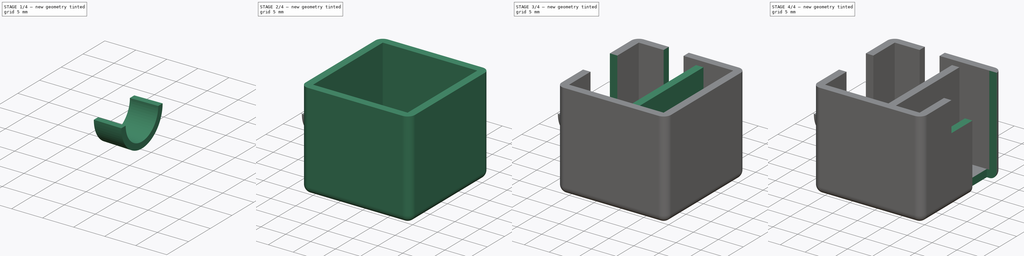
[diagram: build sequence overview — one tinted view per stage of 4, left to right]
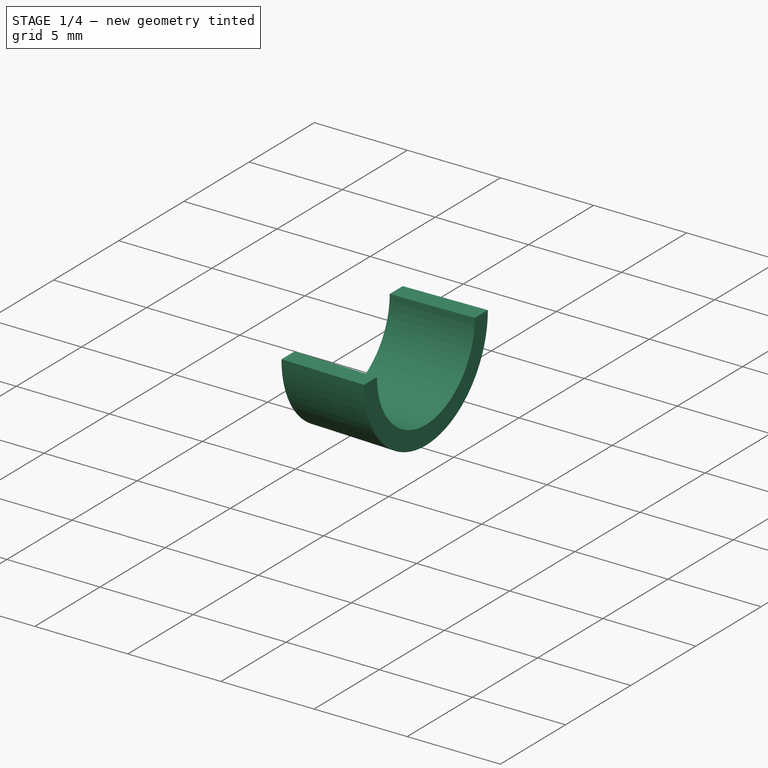
[diagram: stage 1 of 4 — iso view after this stage's code; geometry added in this stage tinted green]
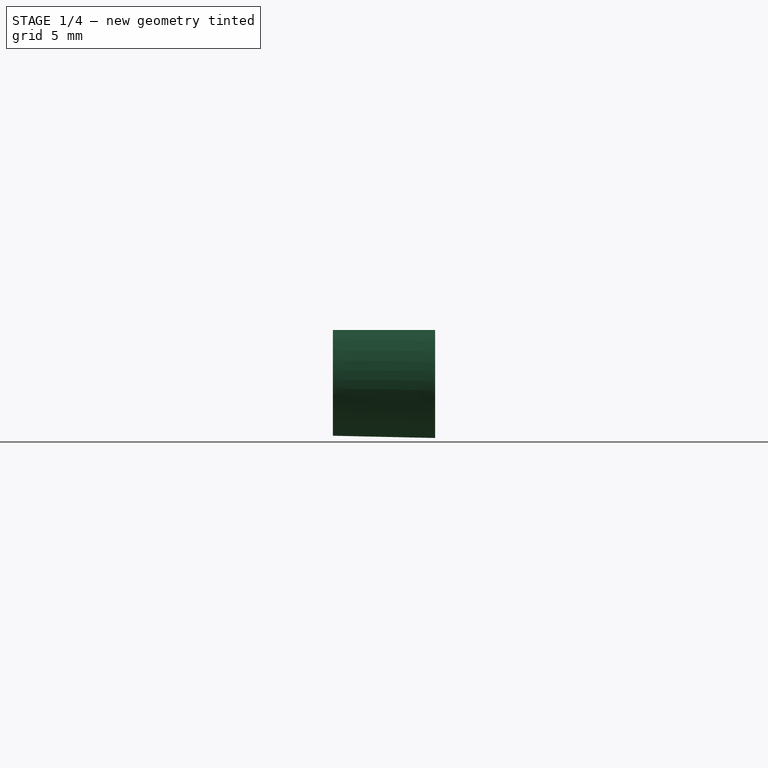
[diagram: stage 1 of 4 — front view after this stage's code; geometry added in this stage tinted green]
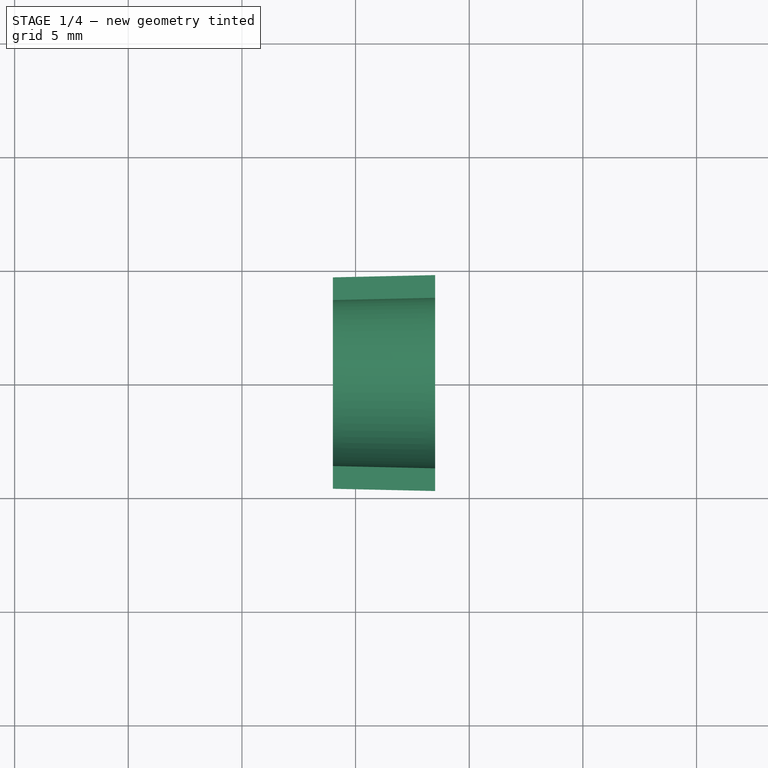
[diagram: stage 1 of 4 — top view after this stage's code; geometry added in this stage tinted green]
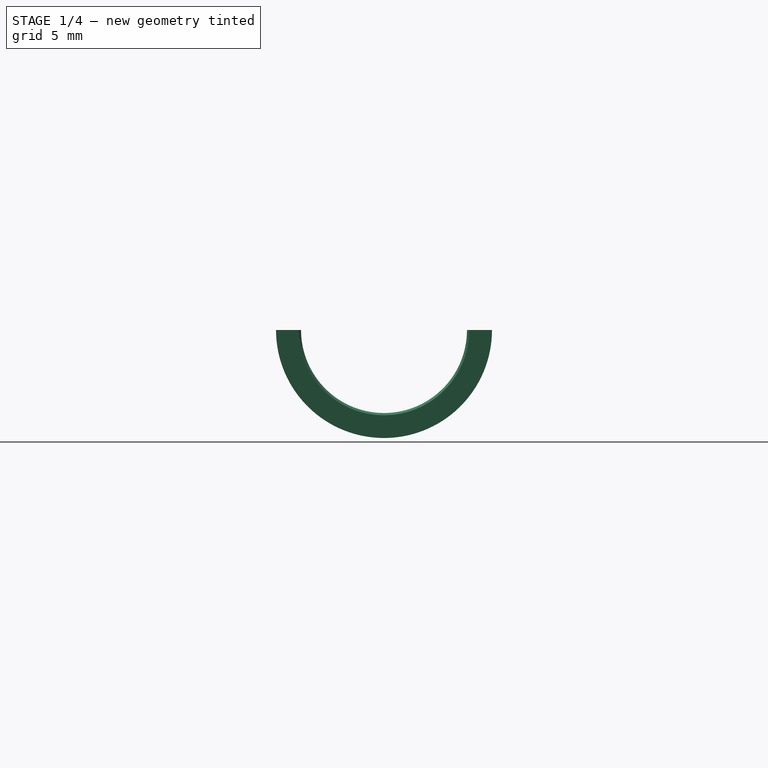
[diagram: stage 1 of 4 — right view after this stage's code; geometry added in this stage tinted green]
FCSTD DOCUMENT  (FreeCAD 0.18RUnknown)
Label: camera_cyclops+vtx
License: All rights reserved
LicenseURL: http://en.wikipedia.org/wiki/All_rights_reserved
objects: TechDraw::DrawViewDimension×6, Sketcher::SketchObject×3, PartDesign::Pocket×3, PartDesign::AdditiveBox×2, PartDesign::Thickness×1, PartDesign::Body×1, Part::Cone×1, Part::Thickness×1, TechDraw::DrawSVGTemplate×1, TechDraw::DrawViewPart×1, TechDraw::DrawPage×1, Part::MultiFuse×1
note: 18 computed .brp shape members not serialized (recipe doc carries the construction recipe); baked Part::Feature solids carry a one-line shape summary decoded from their .brp

FEATURE [PartDesign::Body] Body
  Group = -> [Box,Thickness,Sketch,Pocket,Sketch001,Pocket001,Box001,Sketch002,Pocket002]
  Origin = -> Origin
  Tip = -> Pocket002
FEATURE [Part::Cone] Cone  label="Cono"
  Angle = 180
  AttacherType = Attacher::AttachEngine3D
  Height = 4.5
  Placement = pos=(-1.5,10,9) rot=(-0.57735,-0.57735,0.57735;2.0944rad)
  Radius1 = 3.75
  Radius2 = 3.65
FEATURE [Part::Thickness] Thickness001
  Faces = -> Cone [Face5,Face4,Face2,Face3]
  Intersection = false
  Join = 0
  Mode = 0
  SelfIntersection = false
  Value = 1
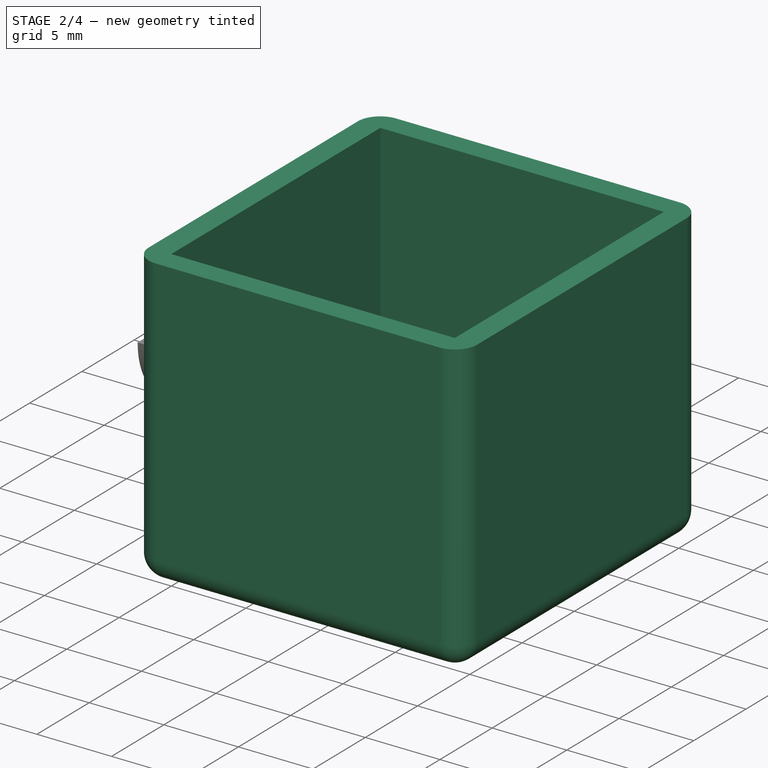
[diagram: stage 2 of 4 — iso view after this stage's code; geometry added in this stage tinted green]
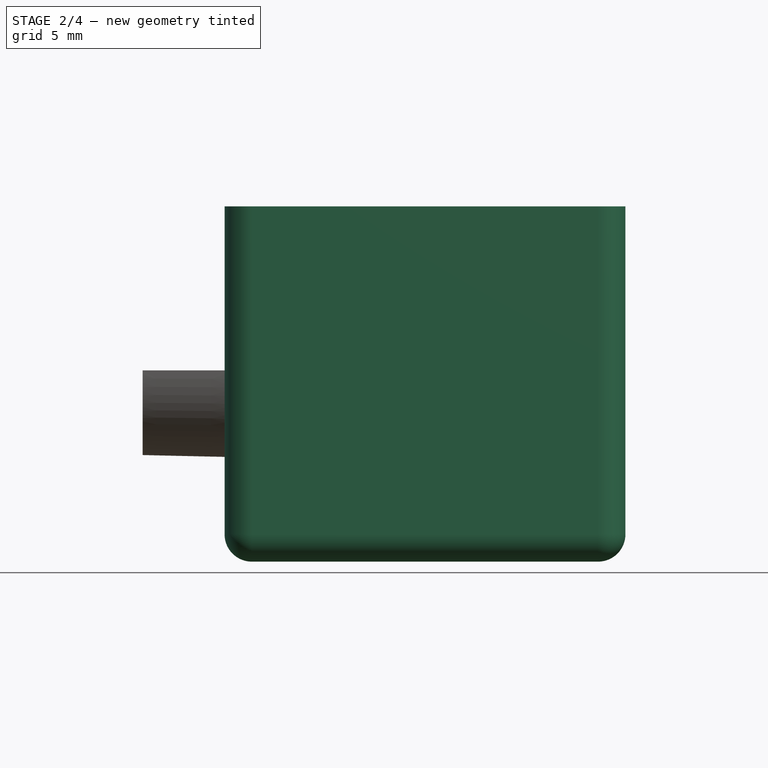
[diagram: stage 2 of 4 — front view after this stage's code; geometry added in this stage tinted green]
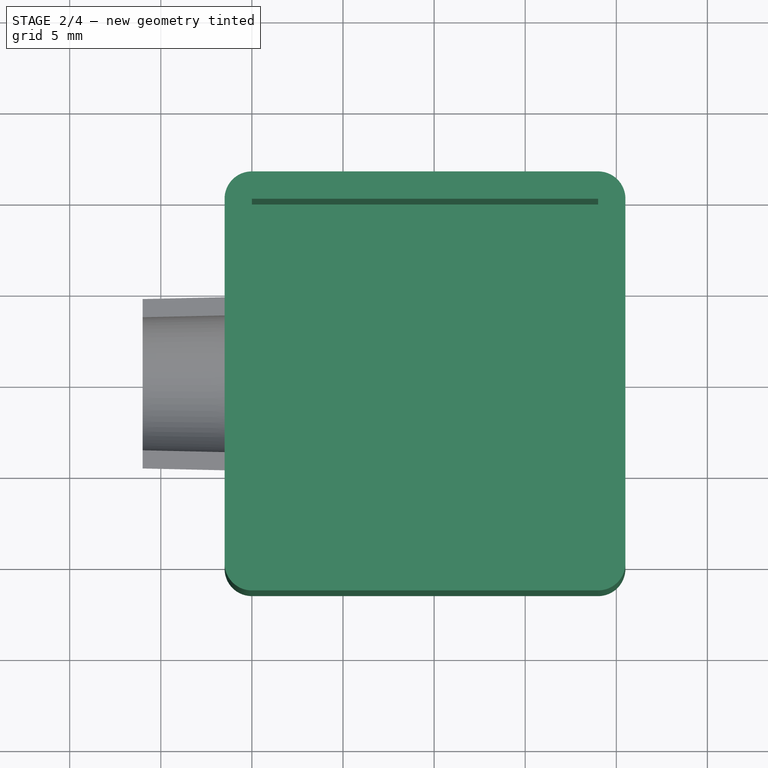
[diagram: stage 2 of 4 — top view after this stage's code; geometry added in this stage tinted green]
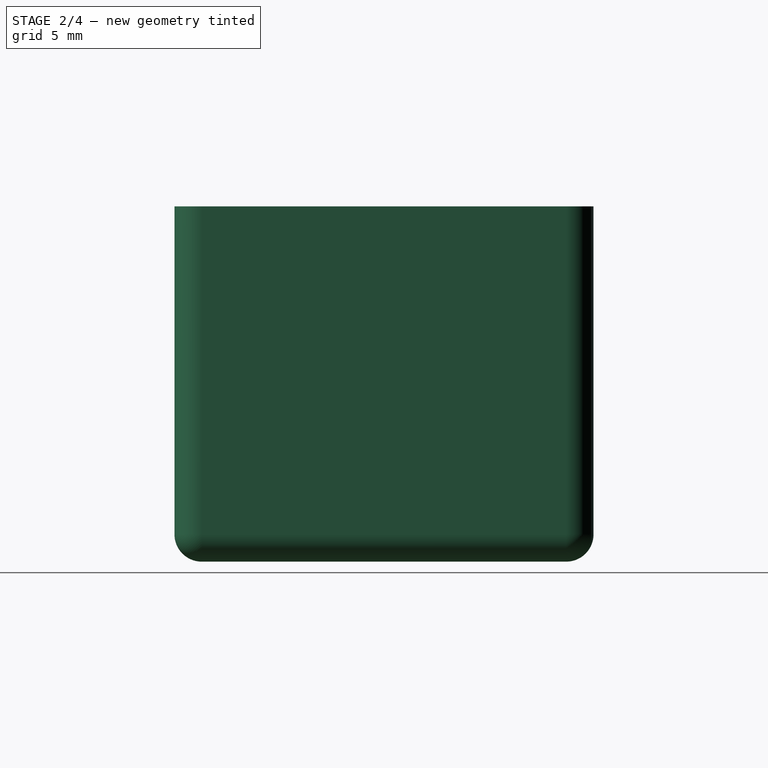
[diagram: stage 2 of 4 — right view after this stage's code; geometry added in this stage tinted green]
FEATURE [PartDesign::AdditiveBox] Box
  AttacherType = Attacher::AttachEngine3D
  Height = 18
  Length = 19
  Width = 20
FEATURE [PartDesign::Thickness] Thickness
  Base = -> Box [Face6]
  BaseFeature = -> Box
  Join = 0
  Mode = 0
  Value = 1.5
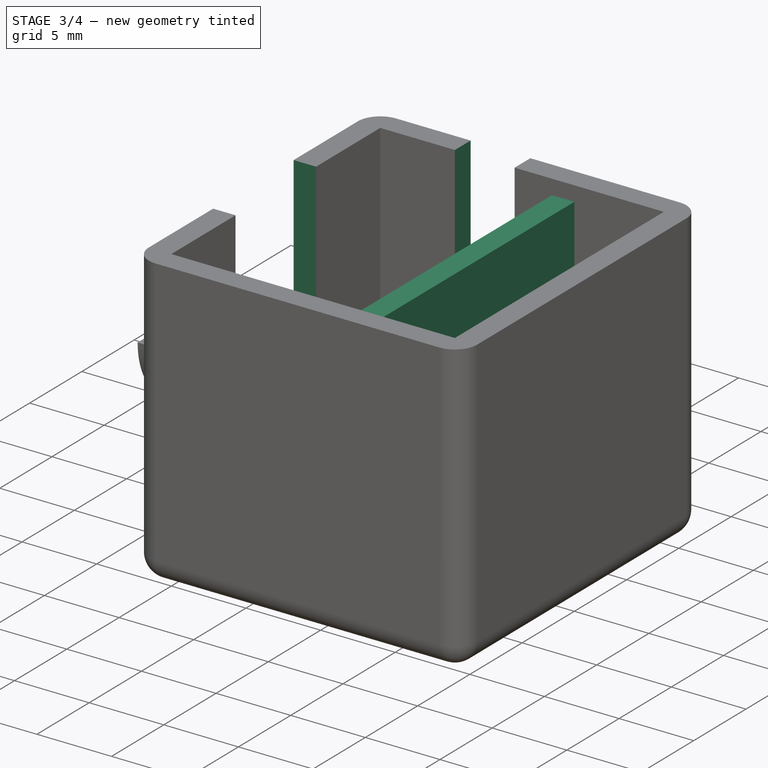
[diagram: stage 3 of 4 — iso view after this stage's code; geometry added in this stage tinted green]
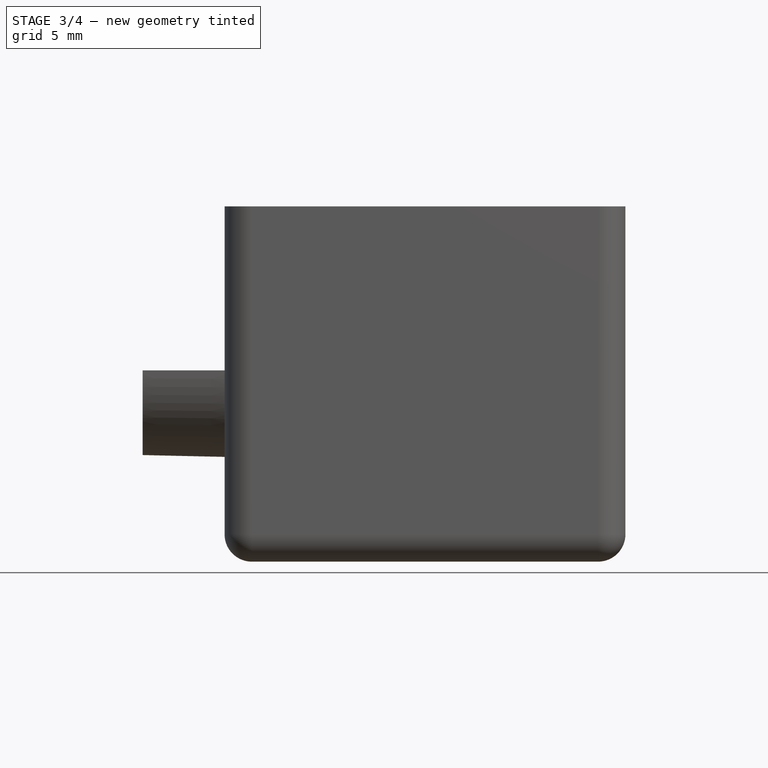
[diagram: stage 3 of 4 — front view after this stage's code; geometry added in this stage tinted green]
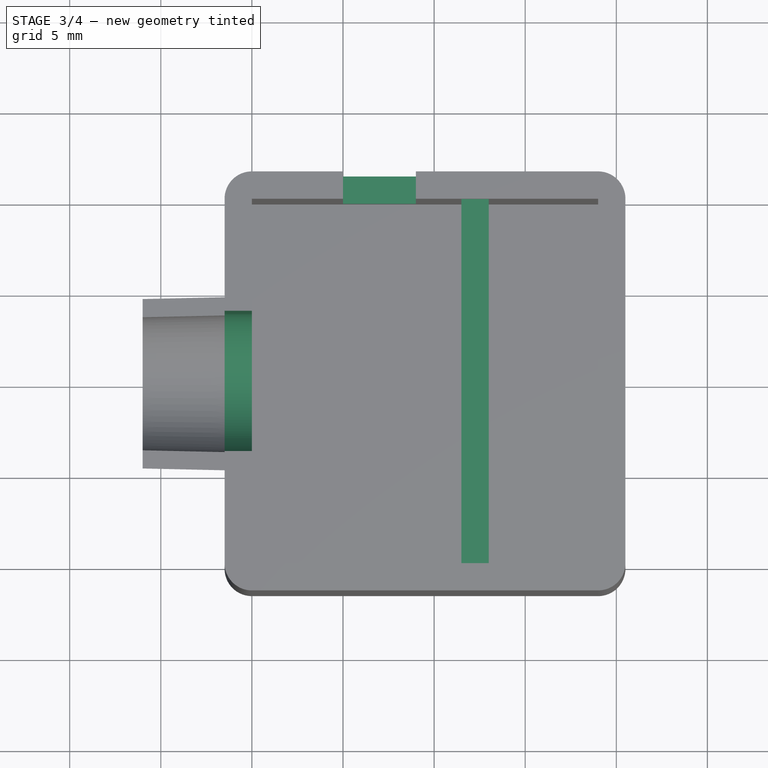
[diagram: stage 3 of 4 — top view after this stage's code; geometry added in this stage tinted green]
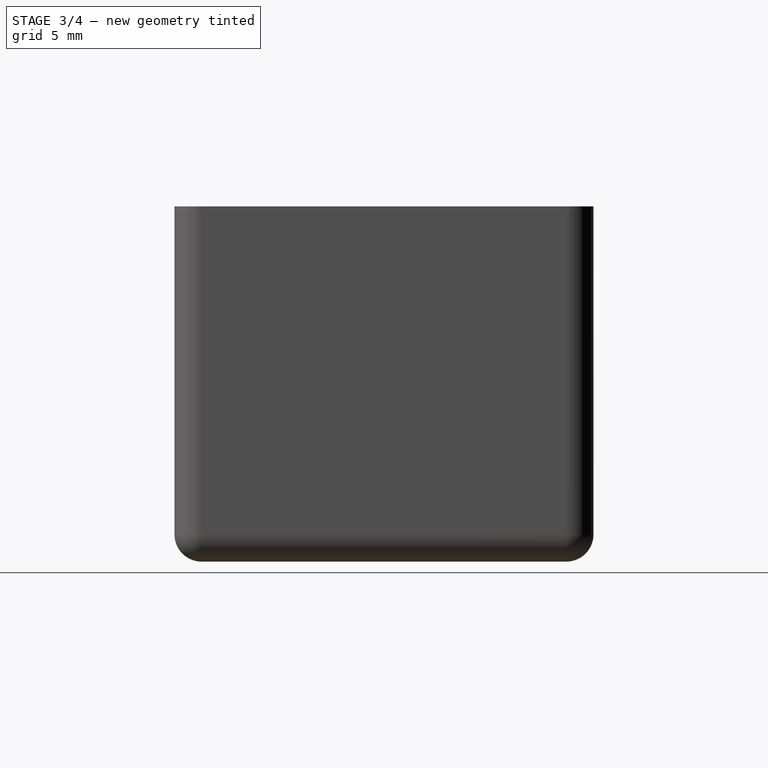
[diagram: stage 3 of 4 — right view after this stage's code; geometry added in this stage tinted green]
FEATURE [Sketcher::SketchObject] Sketch
  MapMode = 5
  Placement = pos=(-1.5,0,0) rot=(0.57735,-0.57735,-0.57735;2.0944rad)
  Support = -> [Thickness]
  sketch-geometry (4):
    g0: ArcOfCircle CenterX=-10 CenterY=19 CenterZ=0 NormalX=0 NormalY=0 NormalZ=1 AngleXU=0 Radius=3.85 StartAngle=-1.33e-14 EndAngle=3.14159
    g1: ArcOfCircle CenterX=-10 CenterY=9 CenterZ=0 NormalX=0 NormalY=0 NormalZ=1 AngleXU=0 Radius=3.85 StartAngle=3.14159 EndAngle=6.28319
    g2: LineSegment StartX=-13.85 StartY=19 StartZ=0 EndX=-13.85 EndY=9 EndZ=0
    g3: LineSegment StartX=-6.15 StartY=19 StartZ=0 EndX=-6.15 EndY=9 EndZ=0
  constraints (10):
    c: Tangent(g0,g3) = 1.5708
    c: Tangent(g0,g2) = -1.5708
    c: Tangent(g2,g1) = -1.5708
    c: Tangent(g3,g1) = 1.5708
    c: Vertical(g2)
    c: Equal(g0,g1)
    c: Diameter(g1) = 7.7
    c: Distance(g1,g-2) = 10
    c: DistanceY(g2,g2) = 10
    c: Distance(g1,g-1) = 9
FEATURE [PartDesign::Pocket] Pocket
  BaseFeature = -> Thickness
  Length = 2
  Length2 = 100
  Profile = -> Sketch
  Type = 0
FEATURE [Sketcher::SketchObject] Sketch001
  MapMode = 5
  Placement = pos=(0,21.5,0) rot=(0,0.707107,0.707107;3.14159rad)
  Support = -> [Pocket]
  sketch-geometry (4):
    g0: LineSegment StartX=-9 StartY=20 StartZ=0 EndX=-5 EndY=20 EndZ=0
    g1: LineSegment StartX=-5 StartY=20 StartZ=0 EndX=-5 EndY=2 EndZ=0
    g2: LineSegment StartX=-5 StartY=2 StartZ=0 EndX=-9 EndY=2 EndZ=0
    g3: LineSegment StartX=-9 StartY=2 StartZ=0 EndX=-9 EndY=20 EndZ=0
  constraints (12):
    c: Coincident(g0,g1)
    c: Coincident(g1,g2)
    c: Coincident(g2,g3)
    c: Coincident(g3,g0)
    c: Horizontal(g0)
    c: Horizontal(g2)
    c: Vertical(g1)
    c: Vertical(g3)
    c: Distance(g1,g-2) = 5
    c: DistanceX(g0,g0) = 4
    c: Distance(g1,g-1) = 2
    c: DistanceY(g1,g1) = 18
FEATURE [PartDesign::Pocket] Pocket001
  BaseFeature = -> Pocket
  Length = 2
  Length2 = 100
  Profile = -> Sketch001
  Type = 0
FEATURE [PartDesign::AdditiveBox] Box001
  AttacherType = Attacher::AttachEngine3D
  AttachmentOffset = pos=(0,0,11.5) rot=(0,0,1;0rad)
  BaseFeature = -> Pocket001
  Height = 1.5
  Length = 20
  MapMode = 5
  Placement = pos=(11.5,-2.6e-15,2.6e-15) rot=(0.57735,0.57735,0.57735;2.0944rad)
  Support = -> [YZ_Plane]
  Width = 17
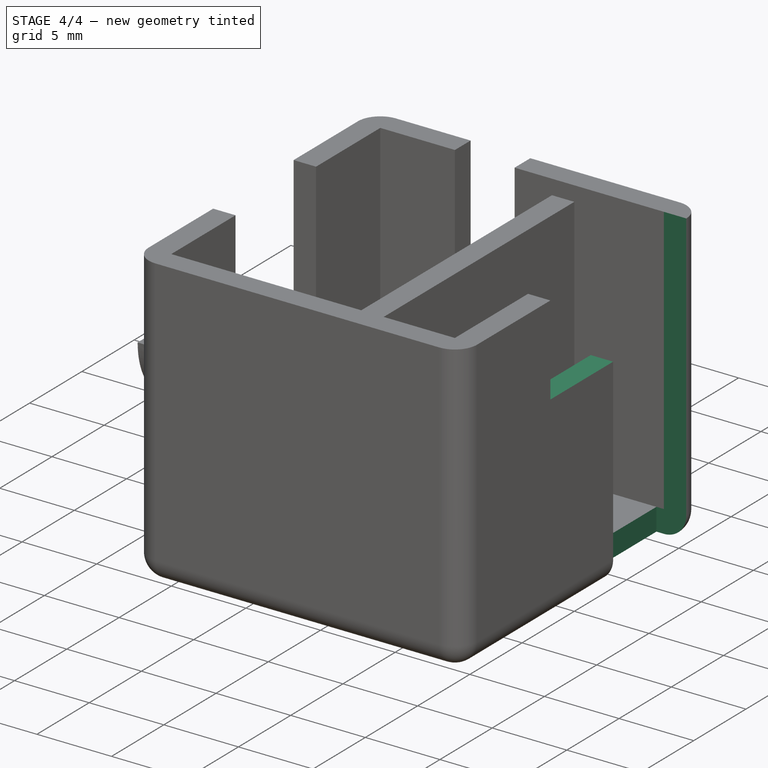
[diagram: stage 4 of 4 — iso view after this stage's code; geometry added in this stage tinted green]
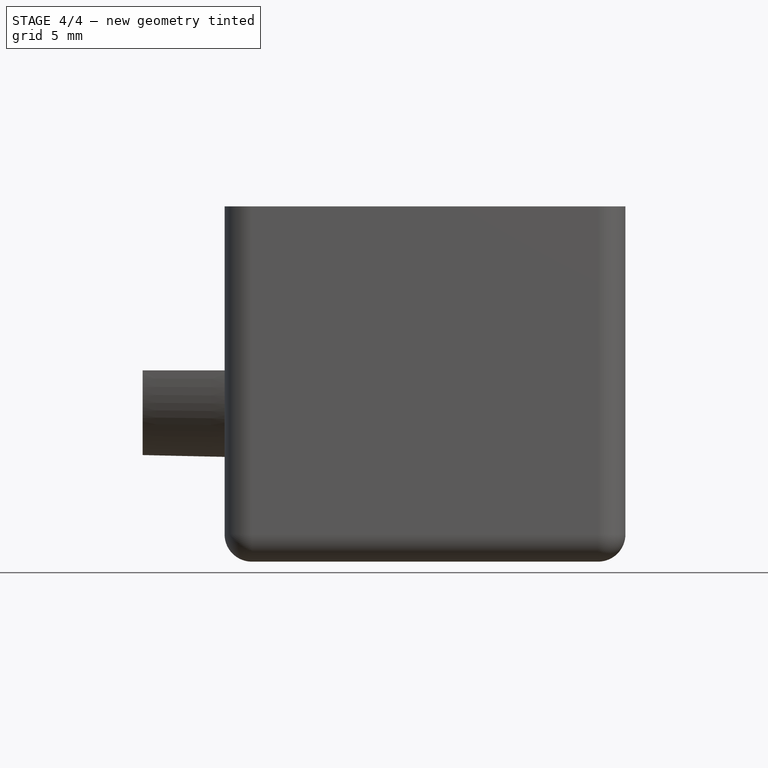
[diagram: stage 4 of 4 — front view after this stage's code; geometry added in this stage tinted green]
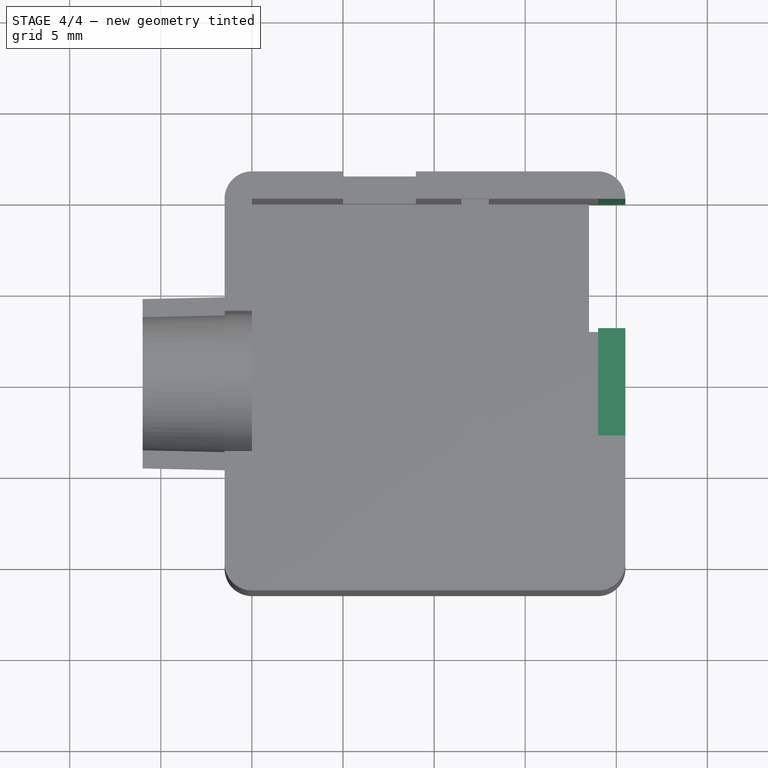
[diagram: stage 4 of 4 — top view after this stage's code; geometry added in this stage tinted green]
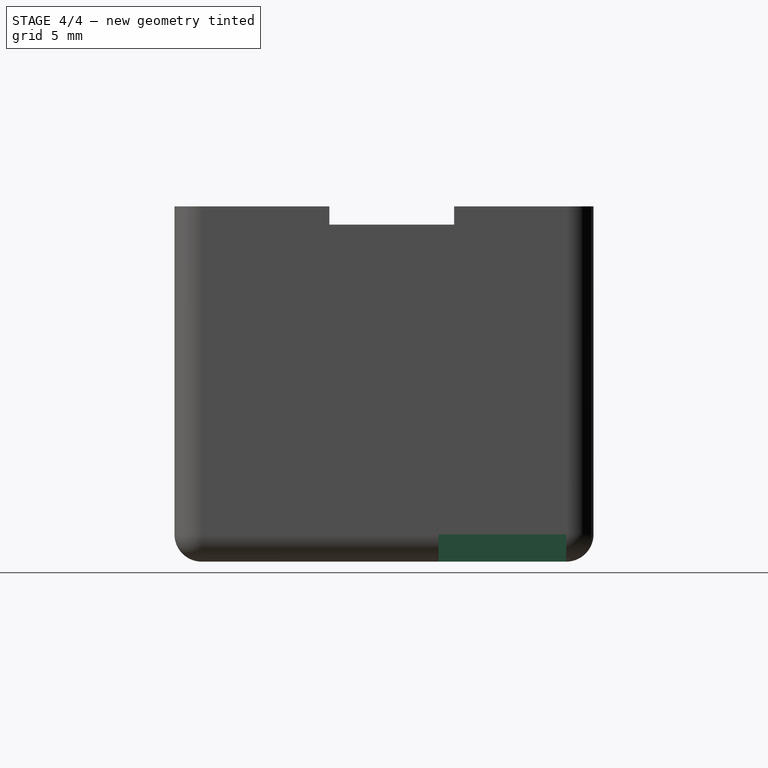
[diagram: stage 4 of 4 — right view after this stage's code; geometry added in this stage tinted green]
FEATURE [Sketcher::SketchObject] Sketch002
  ExternalGeometry = -> [Box001]
  MapMode = 5
  Placement = pos=(20.5,-2.6e-15,1.6e-15) rot=(0.57735,0.57735,0.57735;2.0944rad)
  Support = -> [Box001]
  sketch-geometry (6):
    g0: LineSegment StartX=20 StartY=18 StartZ=0 EndX=7 EndY=18 EndZ=0
    g1: LineSegment StartX=7 StartY=18 StartZ=0 EndX=7 EndY=12 EndZ=0
    g2: LineSegment StartX=7 StartY=12 StartZ=0 EndX=13 EndY=12 EndZ=0
    g3: LineSegment StartX=13 StartY=12 StartZ=0 EndX=13 EndY=-10.5649 EndZ=0
    g4: LineSegment StartX=13 StartY=-10.5649 StartZ=0 EndX=20 EndY=-10.5649 EndZ=0
    g5: LineSegment StartX=20 StartY=-10.5649 StartZ=0 EndX=20 EndY=18 EndZ=0
  constraints (16):
    c: Coincident(g-3,g0)
    c: Horizontal(g0)
    c: Coincident(g0,g1)
    c: Coincident(g1,g2)
    c: Horizontal(g2)
    c: Coincident(g2,g3)
    c: Vertical(g3)
    c: Coincident(g3,g4)
    c: PointOnObject(g4,g-3)
    c: Horizontal(g4)
    c: Coincident(g4,g5)
    c: Coincident(g5,g0)
    c: Vertical(g1)
    c: DistanceX(g0,g0) = 13
    c: DistanceX(g2,g2) = 6
    c: DistanceY(g1,g1) = 6
FEATURE [PartDesign::Pocket] Pocket002
  BaseFeature = -> Box001
  Length = 2
  Length2 = 100
  Placement = pos=(11.5,-2.6e-15,2.6e-15) rot=(0.57735,0.57735,0.57735;2.0944rad)
  Profile = -> Sketch002
  Type = 0
FEATURE [TechDraw::DrawSVGTemplate] Template
  EditableTexts = AUTHOR_NAME=José Juan Escudero; DN=DN; DRAWING_TITLE=Carcasa Cyplops 3 + VTX; FC-DATE=DD/MM/YYYY; FC-REV=REV A; FC-SC=SCALE; FC-SH=X / Y; FC-SI=A4; FreeCAD_DRAWING=FreeCAD DRAWING; PN=PN
  Height = 210
  Orientation = 1
  Width = 297
FEATURE [TechDraw::DrawViewPart] View
  CoarseView = true
  Direction = (-0.58,-0.58,0.58)
  Focus = 100
  HardHidden = false
  IsoCount = 0
  IsoHidden = false
  IsoVisible = false
  LockPosition = false
  Perspective = true
  Rotation = 0
  Scale = 3
  ScaleType = 2
  SeamHidden = false
  SeamVisible = false
  SmoothHidden = false
  SmoothVisible = false
  X = 148.5
  Y = 105
FEATURE [TechDraw::DrawViewDimension] Dimension
  Arbitrary = false
  FormatSpec = %.2f
  LockPosition = false
  MeasureType = 1
  OverTolerance = 0
  References2D = -> [View]
  Rotation = 0
  ScaleType = 0
  Type = 0
  UnderTolerance = 0
  X = 5.70934
  Y = 34.5553
FEATURE [TechDraw::DrawViewDimension] Dimension001
  Arbitrary = false
  FormatSpec = %.2f
  LockPosition = false
  MeasureType = 1
  OverTolerance = 0
  References2D = -> [View]
  Rotation = 0
  ScaleType = 0
  Type = 1
  UnderTolerance = 0
  X = 22.9341
  Y = -9.61403
FEATURE [TechDraw::DrawViewDimension] Dimension002
  Arbitrary = false
  FormatSpec = %.2f
  LockPosition = false
  MeasureType = 1
  OverTolerance = 0
  References2D = -> [View]
  Rotation = 0
  ScaleType = 0
  Type = 1
  UnderTolerance = 0
  X = -34.4091
  Y = 52.7682
FEATURE [TechDraw::DrawViewDimension] Dimension003
  Arbitrary = false
  FormatSpec = %.2f
  LockPosition = false
  MeasureType = 1
  OverTolerance = 0
  References2D = -> [View]
  Rotation = 0
  ScaleType = 0
  Type = 1
  UnderTolerance = 0
  X = -14.6944
  Y = 67.614
FEATURE [TechDraw::DrawViewDimension] Dimension004
  Arbitrary = false
  FormatSpec = %.2f
  LockPosition = false
  MeasureType = 1
  OverTolerance = 0
  References2D = -> [View]
  Rotation = 0
  ScaleType = 0
  Type = 1
  UnderTolerance = 0
  X = 64.2243
  Y = 45.8977
FEATURE [TechDraw::DrawViewDimension] Dimension005
  Arbitrary = false
  FormatSpec = %.2f
  LockPosition = false
  MeasureType = 1
  OverTolerance = 0
  References2D = -> [View]
  Rotation = 0
  ScaleType = 0
  Type = 2
  UnderTolerance = 0
  X = -68.927
  Y = 36.8259
FEATURE [TechDraw::DrawPage] Page
  KeepUpdated = true
  ProjectionType = 0
  Template = -> Template
  Views = -> [View,Dimension,Dimension001,Dimension002,Dimension003,Dimension004,Dimension005]
FEATURE [Part::MultiFuse] Fusion
  Shapes = -> [Body,Thickness001]
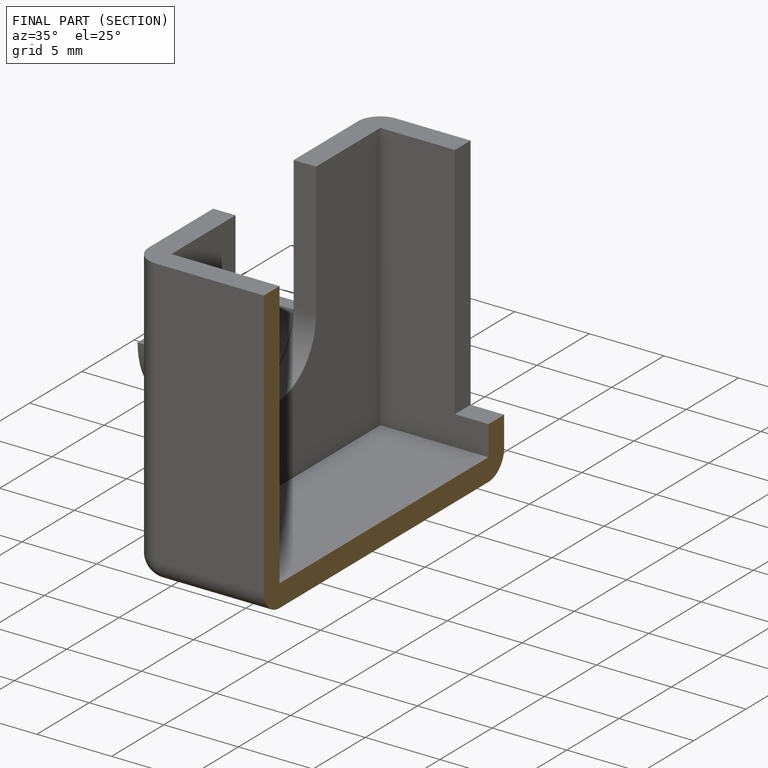
[diagram: finished part — half-section view (interior)]
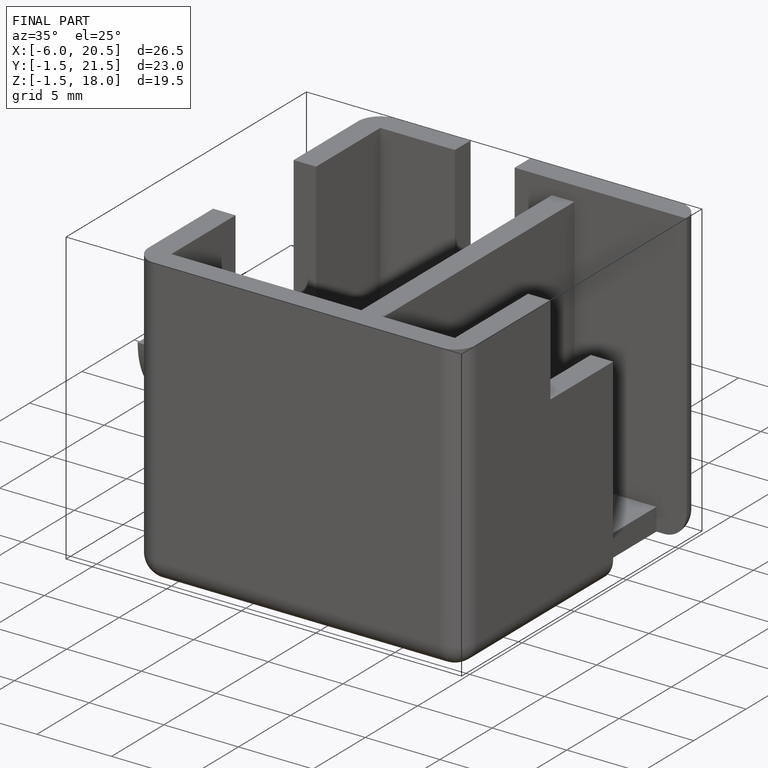
[diagram: finished part — iso view with bounding-box wireframe]
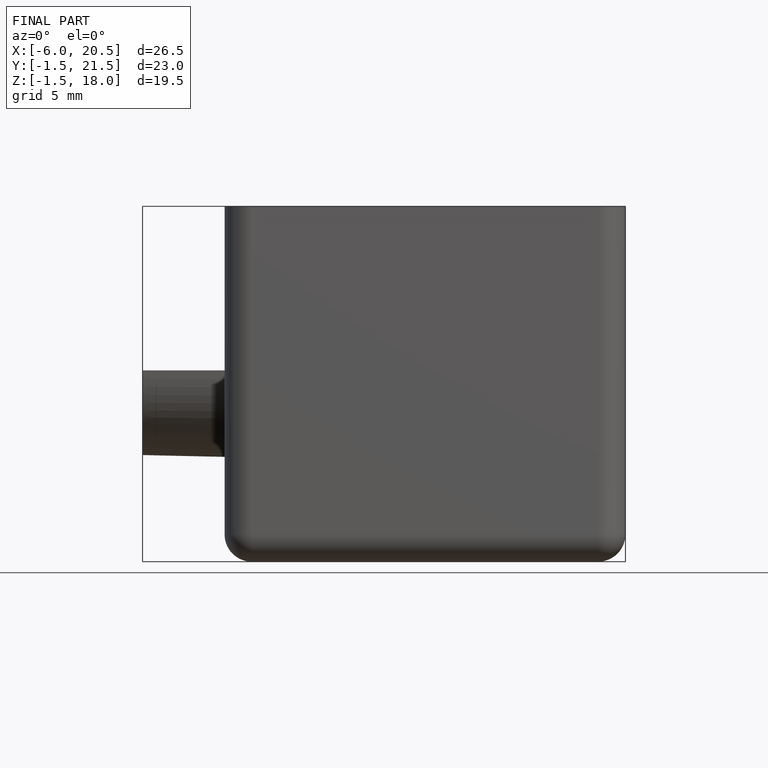
[diagram: finished part — front view with bounding-box wireframe]
